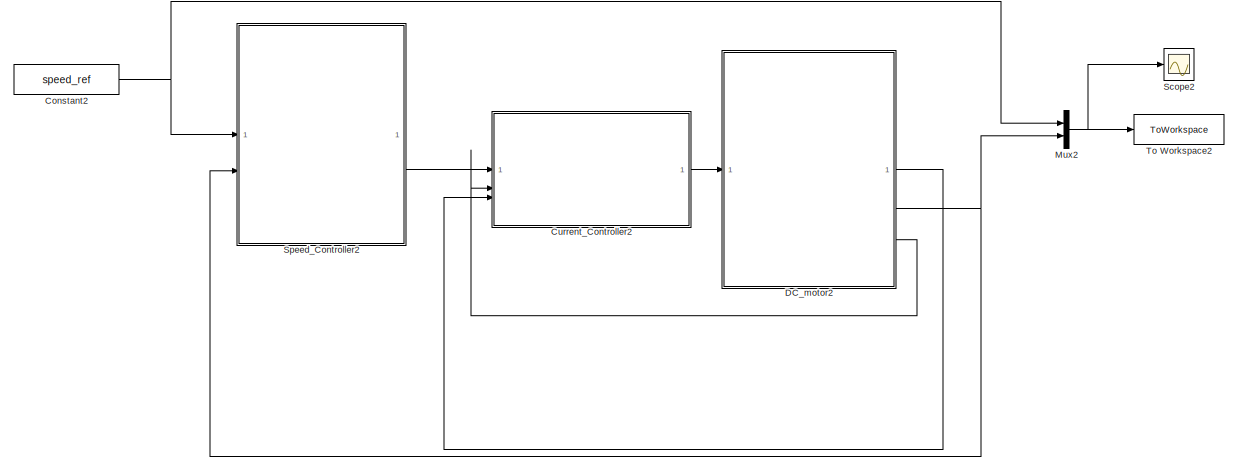
[diagram: root canvas - part 1/4, top right region]
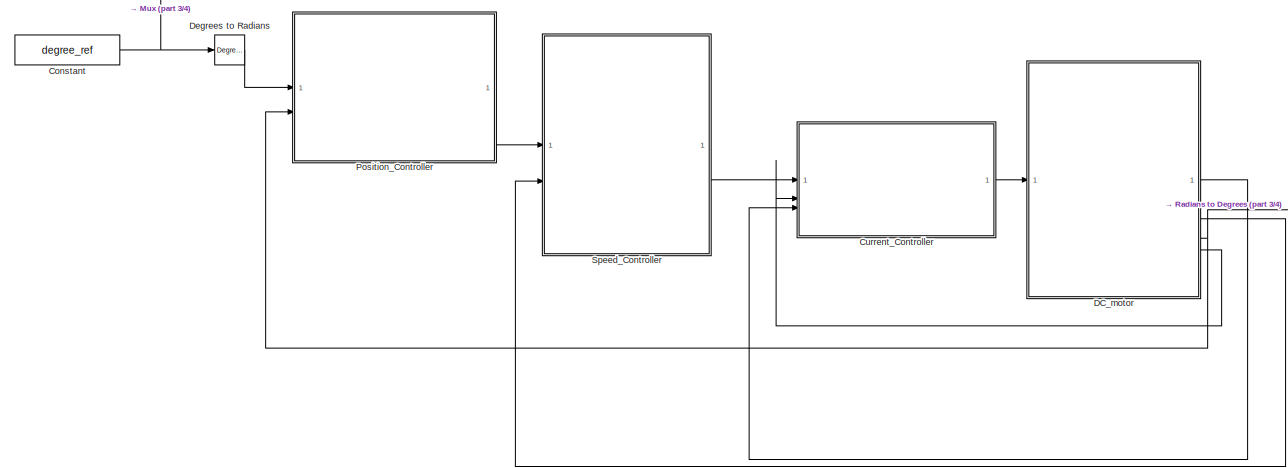
[diagram: root canvas - part 2/4, top left region]
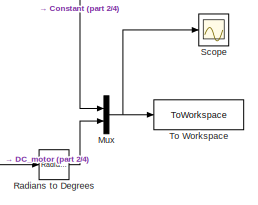
[diagram: root canvas - part 3/4, top center region]
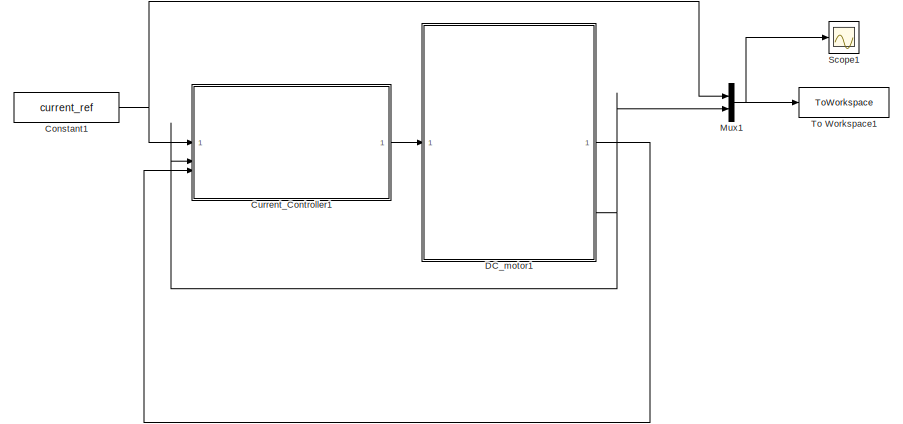
[diagram: root canvas - part 4/4, bottom left region]
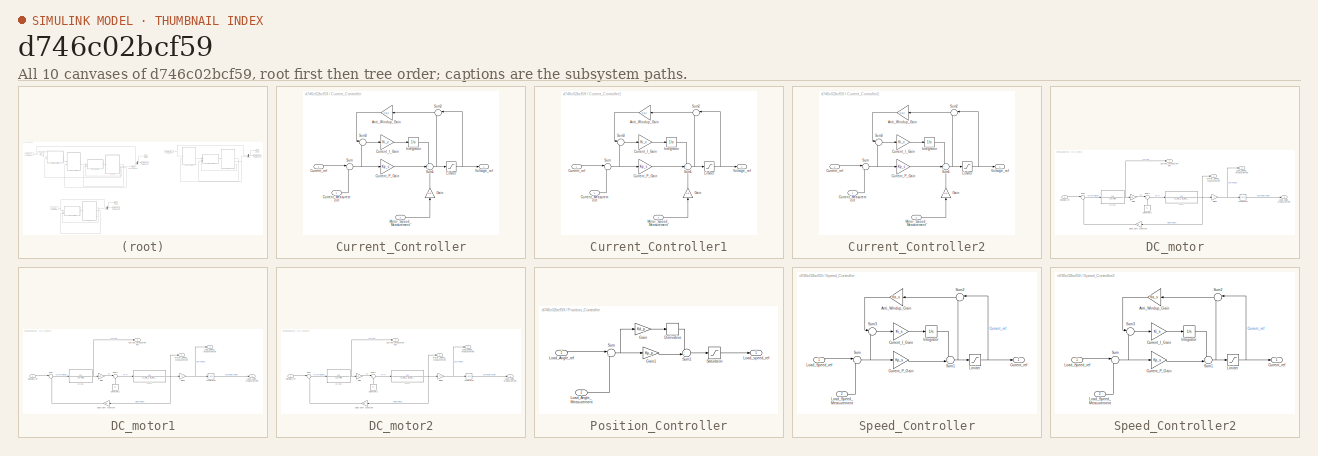
[diagram: thumbnail index - all 10 canvases of the model, root first then tree order]
MODEL slx_d746c02bcf59
KIND model
CONFIG AbsTol = auto
CONFIG EnableMultiTasking = off
CONFIG FixedStep = auto
CONFIG MaxStep = auto
CONFIG MinStep = auto
CONFIG RelTol = 1e-3
CONFIG SampleTimeConstraint = Unconstrained
CONFIG SolverName = VariableStepAuto
CONFIG StartTime = 0.0
CONFIG StopTime = 3
BLOCK [Constant] Constant
  Value = degree_ref
BLOCK [Constant] Constant1
  Value = current_ref
BLOCK [Constant] Constant2
  Value = speed_ref
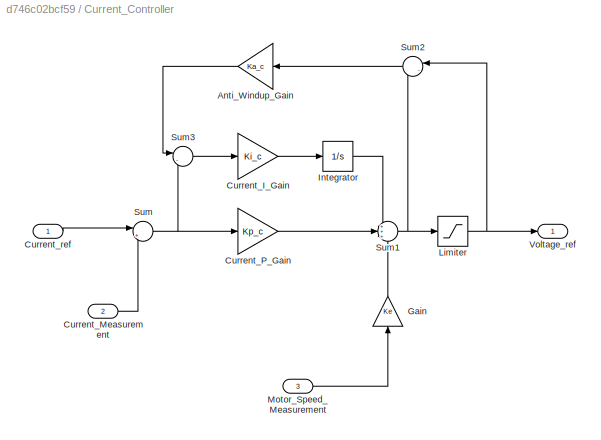
BLOCK [SubSystem] Current_Controller
BLOCK [Gain] Current_Controller/Anti_Windup_Gain
  Gain = Ka_c
  NameLocation = top
BLOCK [Gain] Current_Controller/Current_I_Gain
  Gain = Ki_c
BLOCK [Inport] Current_Controller/Current_Measurement
  Port = 2
BLOCK [Gain] Current_Controller/Current_P_Gain
  Gain = Kp_c
BLOCK [Inport] Current_Controller/Current_ref
BLOCK [Gain] Current_Controller/Gain
  Gain = Ke
  NameLocation = right
BLOCK [Integrator] Current_Controller/Integrator
BLOCK [Saturate] Current_Controller/Limiter
  LowerLimit = -48
  UpperLimit = 48
BLOCK [Inport] Current_Controller/Motor_Speed_Measurement
  Port = 3
BLOCK [Sum] Current_Controller/Sum
  Inputs = |+-
BLOCK [Sum] Current_Controller/Sum1
  Inputs = +++
BLOCK [Sum] Current_Controller/Sum2
  Inputs = |-+
  NameLocation = top
BLOCK [Sum] Current_Controller/Sum3
  Inputs = |-+
BLOCK [Outport] Current_Controller/Voltage_ref
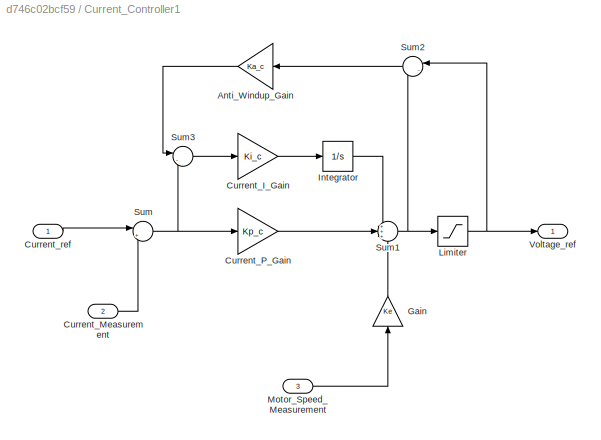
BLOCK [SubSystem] Current_Controller1
BLOCK [Gain] Current_Controller1/Anti_Windup_Gain
  Gain = Ka_c
  NameLocation = top
BLOCK [Gain] Current_Controller1/Current_I_Gain
  Gain = Ki_c
BLOCK [Inport] Current_Controller1/Current_Measurement
  Port = 2
BLOCK [Gain] Current_Controller1/Current_P_Gain
  Gain = Kp_c
BLOCK [Inport] Current_Controller1/Current_ref
BLOCK [Gain] Current_Controller1/Gain
  Gain = Ke
  NameLocation = right
BLOCK [Integrator] Current_Controller1/Integrator
BLOCK [Saturate] Current_Controller1/Limiter
  LowerLimit = -48
  UpperLimit = 48
BLOCK [Inport] Current_Controller1/Motor_Speed_Measurement
  Port = 3
BLOCK [Sum] Current_Controller1/Sum
  Inputs = |+-
BLOCK [Sum] Current_Controller1/Sum1
  Inputs = +++
BLOCK [Sum] Current_Controller1/Sum2
  Inputs = |-+
  NameLocation = top
BLOCK [Sum] Current_Controller1/Sum3
  Inputs = |-+
BLOCK [Outport] Current_Controller1/Voltage_ref
BLOCK [SubSystem] Current_Controller2
BLOCK [Gain] Current_Controller2/Anti_Windup_Gain
  Gain = Ka_c
  NameLocation = top
BLOCK [Gain] Current_Controller2/Current_I_Gain
  Gain = Ki_c
BLOCK [Inport] Current_Controller2/Current_Measurement
  Port = 2
BLOCK [Gain] Current_Controller2/Current_P_Gain
  Gain = Kp_c
BLOCK [Inport] Current_Controller2/Current_ref
BLOCK [Gain] Current_Controller2/Gain
  Gain = Ke
  NameLocation = right
BLOCK [Integrator] Current_Controller2/Integrator
BLOCK [Saturate] Current_Controller2/Limiter
  LowerLimit = -48
  UpperLimit = 48
BLOCK [Inport] Current_Controller2/Motor_Speed_Measurement
  Port = 3
BLOCK [Sum] Current_Controller2/Sum
  Inputs = |+-
BLOCK [Sum] Current_Controller2/Sum1
  Inputs = +++
BLOCK [Sum] Current_Controller2/Sum2
  Inputs = |-+
  NameLocation = top
BLOCK [Sum] Current_Controller2/Sum3
  Inputs = |-+
BLOCK [Outport] Current_Controller2/Voltage_ref
BLOCK [SubSystem] DC_motor
BLOCK [Gain] DC_motor/Back Emf constant
  Gain = Ke
  NameLocation = top
BLOCK [Constant] DC_motor/Constant1
  NameLocation = right
  Value = Tl
BLOCK [Outport] DC_motor/Current_Measurement
  Port = 4
BLOCK [Gain] DC_motor/Gain
  Gain = Kt
BLOCK [Gain] DC_motor/Gain2
  Gain = n
BLOCK [Integrator] DC_motor/Integrator
BLOCK [Outport] DC_motor/Load_Angle_Measurement
  Port = 3
BLOCK [Outport] DC_motor/Load_Speed_Measurement
  Port = 2
BLOCK [Outport] DC_motor/Motor_Speed_Measurement
BLOCK [Sum] DC_motor/Sum
  Inputs = |+-
BLOCK [Sum] DC_motor/Sum1
  Inputs = |+-
BLOCK [Inport] DC_motor/Voltage_ref
BLOCK [TransferFcn] DC_motor/기계시스템
  Denominator = [J_eq_1 B_eq_1]
BLOCK [TransferFcn] DC_motor/전기 시스템
  Denominator = [La Ra]
BLOCK [SubSystem] DC_motor1
BLOCK [Gain] DC_motor1/Back Emf constant
  Gain = Ke
  NameLocation = top
BLOCK [Constant] DC_motor1/Constant1
  NameLocation = right
  Value = Tl
BLOCK [Outport] DC_motor1/Current_Measurement
  Port = 4
BLOCK [Gain] DC_motor1/Gain
  Gain = Kt
BLOCK [Gain] DC_motor1/Gain2
  Gain = n
BLOCK [Integrator] DC_motor1/Integrator
BLOCK [Outport] DC_motor1/Load_Angle_Measurement
  Port = 3
BLOCK [Outport] DC_motor1/Load_Speed_Measurement
  Port = 2
BLOCK [Outport] DC_motor1/Motor_Speed_Measurement
BLOCK [Sum] DC_motor1/Sum
  Inputs = |+-
BLOCK [Sum] DC_motor1/Sum1
  Inputs = |+-
BLOCK [Inport] DC_motor1/Voltage_ref
BLOCK [TransferFcn] DC_motor1/기계시스템
  Denominator = [J_eq_1 B_eq_1]
BLOCK [TransferFcn] DC_motor1/전기 시스템
  Denominator = [La Ra]
BLOCK [SubSystem] DC_motor2
BLOCK [Gain] DC_motor2/Back Emf constant
  Gain = Ke
  NameLocation = top
BLOCK [Constant] DC_motor2/Constant1
  NameLocation = right
  Value = Tl
BLOCK [Outport] DC_motor2/Current_Measurement
  Port = 4
BLOCK [Gain] DC_motor2/Gain
  Gain = Kt
BLOCK [Gain] DC_motor2/Gain2
  Gain = n
BLOCK [Integrator] DC_motor2/Integrator
BLOCK [Outport] DC_motor2/Load_Angle_Measurement
  Port = 3
BLOCK [Outport] DC_motor2/Load_Speed_Measurement
  Port = 2
BLOCK [Outport] DC_motor2/Motor_Speed_Measurement
BLOCK [Sum] DC_motor2/Sum
  Inputs = |+-
BLOCK [Sum] DC_motor2/Sum1
  Inputs = |+-
BLOCK [Inport] DC_motor2/Voltage_ref
BLOCK [TransferFcn] DC_motor2/기계시스템
  Denominator = [J_eq_1 B_eq_1]
BLOCK [TransferFcn] DC_motor2/전기 시스템
  Denominator = [La Ra]
BLOCK [Reference] Degrees to Radians  REF=simulink_extras/Transformations/Degrees to
Radians
  SourceBlock = simulink_extras/Transformations/Degrees to\nRadians
  SourceType = DegreesToRadians
BLOCK [Mux] Mux
  DisplayOption = bar
  Inputs = 2
BLOCK [Mux] Mux1
  DisplayOption = bar
  Inputs = 2
BLOCK [Mux] Mux2
  DisplayOption = bar
  Inputs = 2
BLOCK [SubSystem] Position_Controller
BLOCK [Derivative] Position_Controller/Derivative
BLOCK [Gain] Position_Controller/Gain
  Gain = Kd_p
BLOCK [Gain] Position_Controller/Gain1
  Gain = Kp_p
BLOCK [Inport] Position_Controller/Load_Angle_Measurement
  Port = 2
BLOCK [Inport] Position_Controller/Load_Angle_ref
BLOCK [Outport] Position_Controller/Load_speed_ref
  VectorParamsAs1DForOutWhenUnconnected = off
BLOCK [Saturate] Position_Controller/Saturation
  LinearizeAsGain = off
  LowerLimit = -6140*pi/30
  UpperLimit = 6140*pi/30
BLOCK [Sum] Position_Controller/Sum
  Inputs = |+-
BLOCK [Sum] Position_Controller/Sum1
  Inputs = ++|
BLOCK [Reference] Radians to Degrees  REF=simulink_extras/Transformations/Radians
to Degrees
  SourceBlock = simulink_extras/Transformations/Radians\nto Degrees
  SourceType = RadiansToDegrees
BLOCK [Scope] Scope
  Floating = off
  NumInputPorts = 1
  ScopeSpecificationString = Simulink.scopes.TimeScopeBlockCfg('CurrentConfiguration', extmgr.ConfigurationSet(extmgr.Configuration('Core','General UI',true),extmgr.Configuration('Core','Source UI',true),extmgr.Configuration('Sources','WiredSimulink',true),extmgr.Configuration('Visuals','Time Domain',true,'SerializedDisplays',{struct('MinYLimReal','-0.125','MaxYLimReal','1.125','YLabelReal','','MinYLimMag','0.00000','MaxYLimM...<+1337ch>
BLOCK [Scope] Scope1
  Floating = off
  NumInputPorts = 1
  ScopeSpecificationString = Simulink.scopes.TimeScopeBlockCfg('CurrentConfiguration', extmgr.ConfigurationSet(extmgr.Configuration('Core','General UI',true),extmgr.Configuration('Core','Source UI',true),extmgr.Configuration('Sources','WiredSimulink',true,'DataLoggingVariableName','ScopeData1'),extmgr.Configuration('Visuals','Time Domain',true,'SerializedDisplays',{struct('MinYLimReal','-0.125','MaxYLimReal','1.125','YLabelRe...<+1376ch>
BLOCK [Scope] Scope2
  Floating = off
  NumInputPorts = 1
  ScopeSpecificationString = Simulink.scopes.TimeScopeBlockCfg('CurrentConfiguration', extmgr.ConfigurationSet(extmgr.Configuration('Core','General UI',true),extmgr.Configuration('Core','Source UI',true),extmgr.Configuration('Sources','WiredSimulink',true,'DataLoggingVariableName','ScopeData2'),extmgr.Configuration('Visuals','Time Domain',true,'SerializedDisplays',{struct('MinYLimReal','-0.625','MaxYLimReal','5.625','YLabelRe...<+1379ch>
BLOCK [SubSystem] Speed_Controller
BLOCK [Gain] Speed_Controller/Anti_Windup_Gain
  Gain = Ka_s
  NameLocation = top
BLOCK [Gain] Speed_Controller/Current_I_Gain
  Gain = Ki_s
BLOCK [Gain] Speed_Controller/Current_P_Gain
  Gain = Kp_s
BLOCK [Outport] Speed_Controller/Current_ref
BLOCK [Integrator] Speed_Controller/Integrator
BLOCK [Saturate] Speed_Controller/Limiter
  LowerLimit = -27.3
  UpperLimit = 27.3
BLOCK [Inport] Speed_Controller/Load_Speed_Measurement
  Port = 2
BLOCK [Inport] Speed_Controller/Load_Speed_ref
BLOCK [Sum] Speed_Controller/Sum
  Inputs = |+-
BLOCK [Sum] Speed_Controller/Sum1
  Inputs = ++|
BLOCK [Sum] Speed_Controller/Sum2
  Inputs = |-+
  NameLocation = top
BLOCK [Sum] Speed_Controller/Sum3
  Inputs = |-+
BLOCK [SubSystem] Speed_Controller2
BLOCK [Gain] Speed_Controller2/Anti_Windup_Gain
  Gain = Ka_s
  NameLocation = top
BLOCK [Gain] Speed_Controller2/Current_I_Gain
  Gain = Ki_s
BLOCK [Gain] Speed_Controller2/Current_P_Gain
  Gain = Kp_s
BLOCK [Outport] Speed_Controller2/Current_ref
BLOCK [Integrator] Speed_Controller2/Integrator
BLOCK [Saturate] Speed_Controller2/Limiter
  LowerLimit = -27.3
  UpperLimit = 27.3
BLOCK [Inport] Speed_Controller2/Load_Speed_Measurement
  Port = 2
BLOCK [Inport] Speed_Controller2/Load_Speed_ref
BLOCK [Sum] Speed_Controller2/Sum
  Inputs = |+-
BLOCK [Sum] Speed_Controller2/Sum1
  Inputs = ++|
BLOCK [Sum] Speed_Controller2/Sum2
  Inputs = |-+
  NameLocation = top
BLOCK [Sum] Speed_Controller2/Sum3
  Inputs = |-+
BLOCK [ToWorkspace] To Workspace
  FixptAsFi = on
  MaxDataPoints = inf
  SampleTime = -1
  VariableName = degree
BLOCK [ToWorkspace] To Workspace1
  FixptAsFi = on
  MaxDataPoints = inf
  SampleTime = -1
  VariableName = current
BLOCK [ToWorkspace] To Workspace2
  FixptAsFi = on
  MaxDataPoints = inf
  SampleTime = -1
  VariableName = speed
NET Constant1:1 -> Current_Controller1:1, Mux1:1
NET Constant2:1 -> Mux2:1, Speed_Controller2:1
NET Constant:1 -> Degrees to Radians:1, Mux:1
LINE Current_Controller/Anti_Windup_Gain:1 -> Current_Controller/Sum3:1
LINE Current_Controller/Current_I_Gain:1 -> Current_Controller/Integrator:1
LINE Current_Controller/Current_Measurement:1 -> Current_Controller/Sum:2
LINE Current_Controller/Current_P_Gain:1 -> Current_Controller/Sum1:2
LINE Current_Controller/Current_ref:1 -> Current_Controller/Sum:1
LINE Current_Controller/Gain:1 -> Current_Controller/Sum1:3
LINE Current_Controller/Integrator:1 -> Current_Controller/Sum1:1
NET Current_Controller/Limiter:1 -> Current_Controller/Sum2:1, Current_Controller/Voltage_ref:1
LINE Current_Controller/Motor_Speed_Measurement:1 -> Current_Controller/Gain:1
NET Current_Controller/Sum1:1 -> Current_Controller/Limiter:1, Current_Controller/Sum2:2
LINE Current_Controller/Sum2:1 -> Current_Controller/Anti_Windup_Gain:1
LINE Current_Controller/Sum3:1 -> Current_Controller/Current_I_Gain:1
NET Current_Controller/Sum:1 -> Current_Controller/Current_P_Gain:1, Current_Controller/Sum3:2
LINE Current_Controller1/Anti_Windup_Gain:1 -> Current_Controller1/Sum3:1
LINE Current_Controller1/Current_I_Gain:1 -> Current_Controller1/Integrator:1
LINE Current_Controller1/Current_Measurement:1 -> Current_Controller1/Sum:2
LINE Current_Controller1/Current_P_Gain:1 -> Current_Controller1/Sum1:2
LINE Current_Controller1/Current_ref:1 -> Current_Controller1/Sum:1
LINE Current_Controller1/Gain:1 -> Current_Controller1/Sum1:3
LINE Current_Controller1/Integrator:1 -> Current_Controller1/Sum1:1
NET Current_Controller1/Limiter:1 -> Current_Controller1/Sum2:1, Current_Controller1/Voltage_ref:1
LINE Current_Controller1/Motor_Speed_Measurement:1 -> Current_Controller1/Gain:1
NET Current_Controller1/Sum1:1 -> Current_Controller1/Limiter:1, Current_Controller1/Sum2:2
LINE Current_Controller1/Sum2:1 -> Current_Controller1/Anti_Windup_Gain:1
LINE Current_Controller1/Sum3:1 -> Current_Controller1/Current_I_Gain:1
NET Current_Controller1/Sum:1 -> Current_Controller1/Current_P_Gain:1, Current_Controller1/Sum3:2
LINE Current_Controller1:1 -> DC_motor1:1
LINE Current_Controller2/Anti_Windup_Gain:1 -> Current_Controller2/Sum3:1
LINE Current_Controller2/Current_I_Gain:1 -> Current_Controller2/Integrator:1
LINE Current_Controller2/Current_Measurement:1 -> Current_Controller2/Sum:2
LINE Current_Controller2/Current_P_Gain:1 -> Current_Controller2/Sum1:2
LINE Current_Controller2/Current_ref:1 -> Current_Controller2/Sum:1
LINE Current_Controller2/Gain:1 -> Current_Controller2/Sum1:3
LINE Current_Controller2/Integrator:1 -> Current_Controller2/Sum1:1
NET Current_Controller2/Limiter:1 -> Current_Controller2/Sum2:1, Current_Controller2/Voltage_ref:1
LINE Current_Controller2/Motor_Speed_Measurement:1 -> Current_Controller2/Gain:1
NET Current_Controller2/Sum1:1 -> Current_Controller2/Limiter:1, Current_Controller2/Sum2:2
LINE Current_Controller2/Sum2:1 -> Current_Controller2/Anti_Windup_Gain:1
LINE Current_Controller2/Sum3:1 -> Current_Controller2/Current_I_Gain:1
NET Current_Controller2/Sum:1 -> Current_Controller2/Current_P_Gain:1, Current_Controller2/Sum3:2
LINE Current_Controller2:1 -> DC_motor2:1
LINE Current_Controller:1 -> DC_motor:1
LINE DC_motor/Back Emf constant:1 -> DC_motor/Sum:2
LINE DC_motor/Constant1:1 -> DC_motor/Sum1:2
NET DC_motor/Gain2:1 -> DC_motor/Integrator:1, DC_motor/Load_Speed_Measurement:1
LINE DC_motor/Gain:1 -> DC_motor/Sum1:1
LINE DC_motor/Integrator:1 -> DC_motor/Load_Angle_Measurement:1
LINE DC_motor/Sum1:1 -> DC_motor/기계시스템:1
LINE DC_motor/Sum:1 -> DC_motor/전기 시스템:1
LINE DC_motor/Voltage_ref:1 -> DC_motor/Sum:1
NET DC_motor/기계시스템:1 -> DC_motor/Back Emf constant:1, DC_motor/Gain2:1, DC_motor/Motor_Speed_Measurement:1
NET DC_motor/전기 시스템:1 -> DC_motor/Current_Measurement:1, DC_motor/Gain:1
LINE DC_motor1/Back Emf constant:1 -> DC_motor1/Sum:2
LINE DC_motor1/Constant1:1 -> DC_motor1/Sum1:2
NET DC_motor1/Gain2:1 -> DC_motor1/Integrator:1, DC_motor1/Load_Speed_Measurement:1
LINE DC_motor1/Gain:1 -> DC_motor1/Sum1:1
LINE DC_motor1/Integrator:1 -> DC_motor1/Load_Angle_Measurement:1
LINE DC_motor1/Sum1:1 -> DC_motor1/기계시스템:1
LINE DC_motor1/Sum:1 -> DC_motor1/전기 시스템:1
LINE DC_motor1/Voltage_ref:1 -> DC_motor1/Sum:1
NET DC_motor1/기계시스템:1 -> DC_motor1/Back Emf constant:1, DC_motor1/Gain2:1, DC_motor1/Motor_Speed_Measurement:1
NET DC_motor1/전기 시스템:1 -> DC_motor1/Current_Measurement:1, DC_motor1/Gain:1
LINE DC_motor1:1 -> Current_Controller1:3
NET DC_motor1:4 -> Current_Controller1:2, Mux1:2
LINE DC_motor2/Back Emf constant:1 -> DC_motor2/Sum:2
LINE DC_motor2/Constant1:1 -> DC_motor2/Sum1:2
NET DC_motor2/Gain2:1 -> DC_motor2/Integrator:1, DC_motor2/Load_Speed_Measurement:1
LINE DC_motor2/Gain:1 -> DC_motor2/Sum1:1
LINE DC_motor2/Integrator:1 -> DC_motor2/Load_Angle_Measurement:1
LINE DC_motor2/Sum1:1 -> DC_motor2/기계시스템:1
LINE DC_motor2/Sum:1 -> DC_motor2/전기 시스템:1
LINE DC_motor2/Voltage_ref:1 -> DC_motor2/Sum:1
NET DC_motor2/기계시스템:1 -> DC_motor2/Back Emf constant:1, DC_motor2/Gain2:1, DC_motor2/Motor_Speed_Measurement:1
NET DC_motor2/전기 시스템:1 -> DC_motor2/Current_Measurement:1, DC_motor2/Gain:1
LINE DC_motor2:1 -> Current_Controller2:3
NET DC_motor2:2 -> Mux2:2, Speed_Controller2:2
LINE DC_motor2:4 -> Current_Controller2:2
LINE DC_motor:1 -> Current_Controller:3
LINE DC_motor:2 -> Speed_Controller:2
NET DC_motor:3 -> Position_Controller:2, Radians to Degrees:1
LINE DC_motor:4 -> Current_Controller:2
LINE Degrees to Radians:1 -> Position_Controller:1
NET Mux1:1 -> Scope1:1, To Workspace1:1
NET Mux2:1 -> Scope2:1, To Workspace2:1
NET Mux:1 -> Scope:1, To Workspace:1
LINE Position_Controller/Derivative:1 -> Position_Controller/Sum1:1
LINE Position_Controller/Gain1:1 -> Position_Controller/Sum1:2
LINE Position_Controller/Gain:1 -> Position_Controller/Derivative:1
LINE Position_Controller/Load_Angle_Measurement:1 -> Position_Controller/Sum:2
LINE Position_Controller/Load_Angle_ref:1 -> Position_Controller/Sum:1
LINE Position_Controller/Saturation:1 -> Position_Controller/Load_speed_ref:1
LINE Position_Controller/Sum1:1 -> Position_Controller/Saturation:1
NET Position_Controller/Sum:1 -> Position_Controller/Gain1:1, Position_Controller/Gain:1
LINE Position_Controller:1 -> Speed_Controller:1
LINE Radians to Degrees:1 -> Mux:2
LINE Speed_Controller/Anti_Windup_Gain:1 -> Speed_Controller/Sum3:1
LINE Speed_Controller/Current_I_Gain:1 -> Speed_Controller/Integrator:1
LINE Speed_Controller/Current_P_Gain:1 -> Speed_Controller/Sum1:2
LINE Speed_Controller/Integrator:1 -> Speed_Controller/Sum1:1
NET Speed_Controller/Limiter:1 -> Speed_Controller/Current_ref:1, Speed_Controller/Sum2:1
LINE Speed_Controller/Load_Speed_Measurement:1 -> Speed_Controller/Sum:2
LINE Speed_Controller/Load_Speed_ref:1 -> Speed_Controller/Sum:1
NET Speed_Controller/Sum1:1 -> Speed_Controller/Limiter:1, Speed_Controller/Sum2:2
LINE Speed_Controller/Sum2:1 -> Speed_Controller/Anti_Windup_Gain:1
LINE Speed_Controller/Sum3:1 -> Speed_Controller/Current_I_Gain:1
NET Speed_Controller/Sum:1 -> Speed_Controller/Current_P_Gain:1, Speed_Controller/Sum3:2
LINE Speed_Controller2/Anti_Windup_Gain:1 -> Speed_Controller2/Sum3:1
LINE Speed_Controller2/Current_I_Gain:1 -> Speed_Controller2/Integrator:1
LINE Speed_Controller2/Current_P_Gain:1 -> Speed_Controller2/Sum1:2
LINE Speed_Controller2/Integrator:1 -> Speed_Controller2/Sum1:1
NET Speed_Controller2/Limiter:1 -> Speed_Controller2/Current_ref:1, Speed_Controller2/Sum2:1
LINE Speed_Controller2/Load_Speed_Measurement:1 -> Speed_Controller2/Sum:2
LINE Speed_Controller2/Load_Speed_ref:1 -> Speed_Controller2/Sum:1
NET Speed_Controller2/Sum1:1 -> Speed_Controller2/Limiter:1, Speed_Controller2/Sum2:2
LINE Speed_Controller2/Sum2:1 -> Speed_Controller2/Anti_Windup_Gain:1
LINE Speed_Controller2/Sum3:1 -> Speed_Controller2/Current_I_Gain:1
NET Speed_Controller2/Sum:1 -> Speed_Controller2/Current_P_Gain:1, Speed_Controller2/Sum3:2
LINE Speed_Controller2:1 -> Current_Controller2:1
LINE Speed_Controller:1 -> Current_Controller:1
note: NET lines group one-source signal fan-out (src -> all destinations, sorted); 1:1 wires keep LINE
